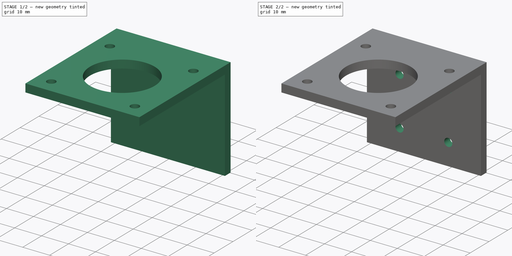
[diagram: build sequence overview — one tinted view per stage of 2, left to right]
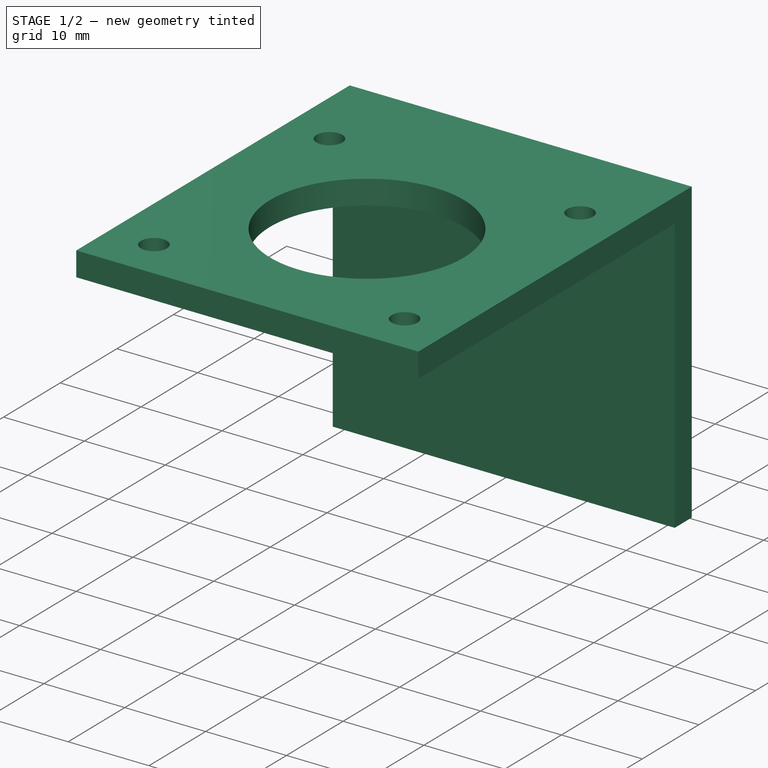
[diagram: stage 1 of 2 — iso view after this stage's code; geometry added in this stage tinted green]
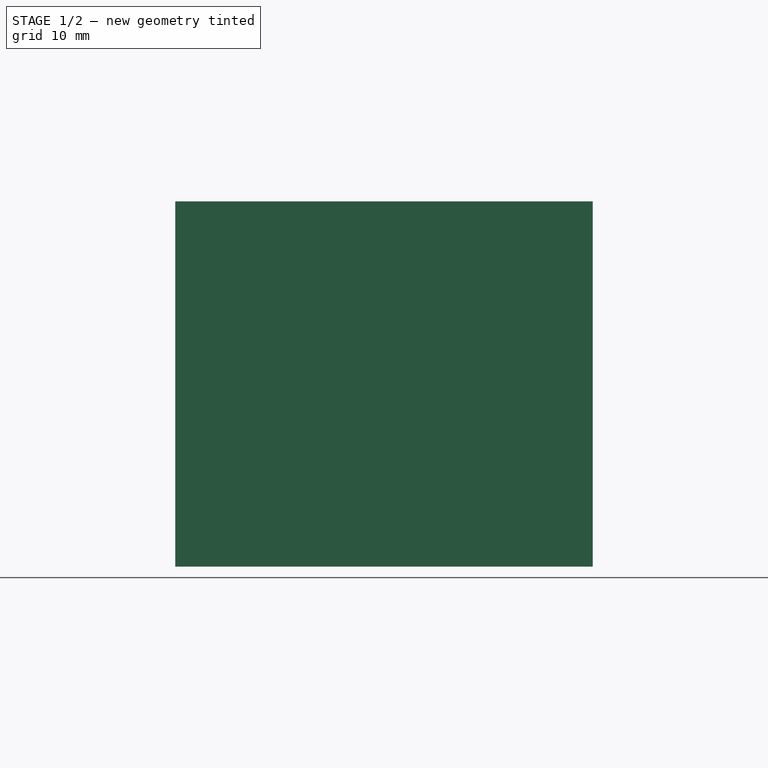
[diagram: stage 1 of 2 — front view after this stage's code; geometry added in this stage tinted green]
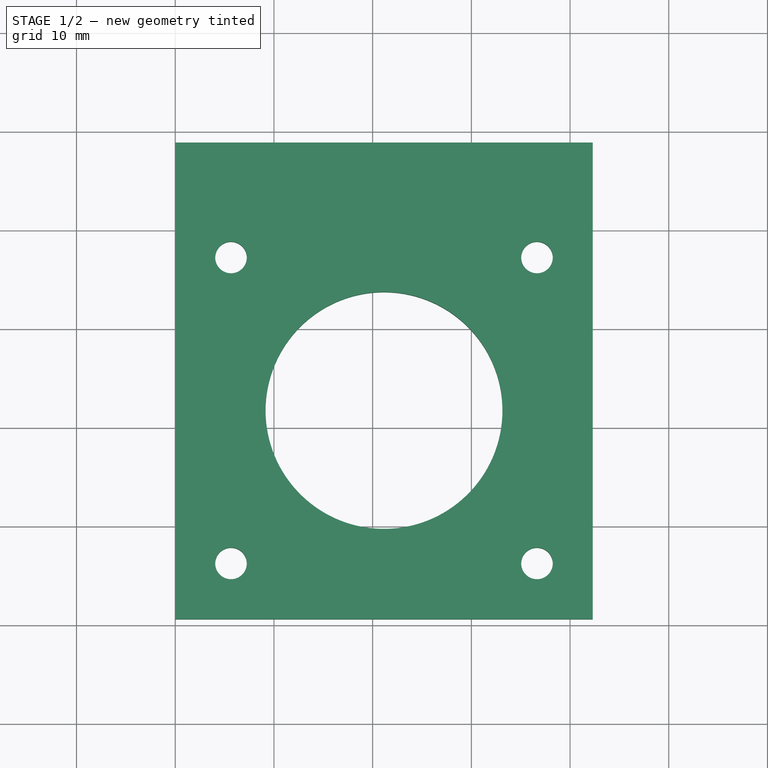
[diagram: stage 1 of 2 — top view after this stage's code; geometry added in this stage tinted green]
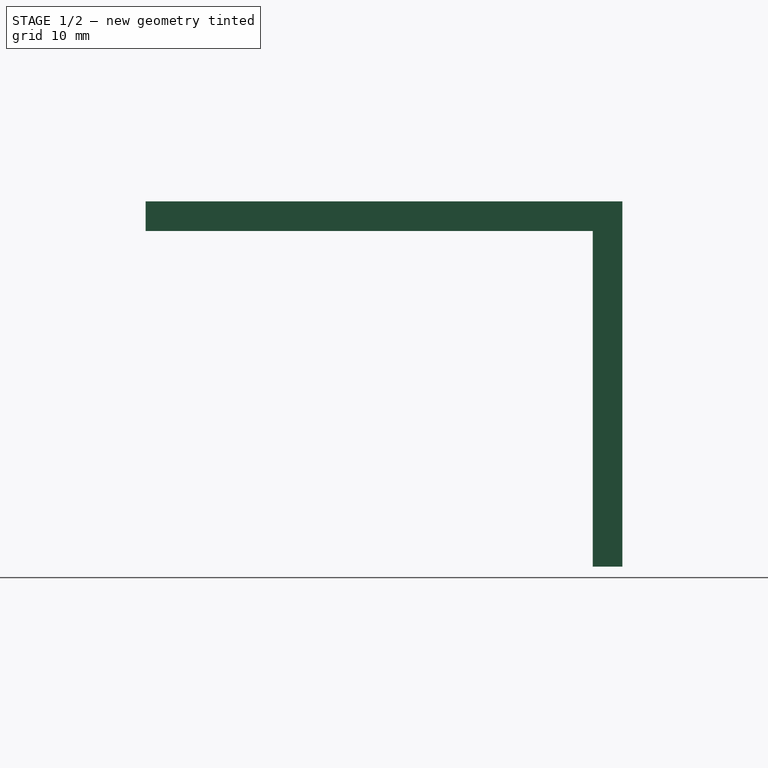
[diagram: stage 1 of 2 — right view after this stage's code; geometry added in this stage tinted green]
FCSTD DOCUMENT  (FreeCAD 0.16R6707 (Git))
Label: suport_moteur_34
License: All rights reserved
LicenseURL: http://en.wikipedia.org/wiki/All_rights_reserved
objects: Drawing::FeatureViewPart×4, Sketcher::SketchObject×3, PartDesign::Pad×2, PartDesign::Pocket×1, Drawing::FeaturePage×1
note: 9 computed .brp shape members not serialized (recipe doc carries the construction recipe); baked Part::Feature solids carry a one-line shape summary decoded from their .brp

FEATURE [Sketcher::SketchObject] Sketch
  sketch-geometry (14):
    g0: LineSegment StartX=0 StartY=0 StartZ=0 EndX=42.3 EndY=0 EndZ=0
    g1: LineSegment StartX=42.3 StartY=0 StartZ=0 EndX=42.3 EndY=48.3 EndZ=0
    g2: LineSegment StartX=42.3 StartY=48.3 StartZ=0 EndX=0 EndY=48.3 EndZ=0
    g3: LineSegment StartX=0 StartY=48.3 StartZ=0 EndX=0 EndY=0 EndZ=0
    g4: GeomPoint [constr] X=5.65 Y=5.65 Z=0
    g5: GeomPoint [constr] X=5.65 Y=36.65 Z=0
    g6: GeomPoint [constr] X=36.65 Y=36.65 Z=0
    g7: GeomPoint [constr] X=36.65 Y=5.65 Z=0
    g8: Circle CenterX=5.65 CenterY=36.65 CenterZ=0 NormalX=0 NormalY=0 NormalZ=1 Radius=1.6
    g9: Circle CenterX=36.65 CenterY=36.65 CenterZ=0 NormalX=0 NormalY=0 NormalZ=1 Radius=1.6
    g10: Circle CenterX=5.65 CenterY=5.65 CenterZ=0 NormalX=0 NormalY=0 NormalZ=1 Radius=1.6
    g11: Circle CenterX=36.65 CenterY=5.65 CenterZ=0 NormalX=0 NormalY=0 NormalZ=1 Radius=1.6
    g12: GeomPoint [constr] X=21.15 Y=21.15 Z=0
    g13: Circle CenterX=21.15 CenterY=21.15 CenterZ=0 NormalX=0 NormalY=0 NormalZ=1 Radius=12
  constraints (31):
    c: Coincident(g0,g1)
    c: Coincident(g1,g2)
    c: Coincident(g2,g3)
    c: Coincident(g3,g0)
    c: Horizontal(g0)
    c: Horizontal(g2)
    c: Vertical(g1)
    c: Vertical(g3)
    c: Coincident(g0,g-1)
    c: Distance(g0) = 42.3
    c: Distance(g3) = 48.3
    c: DistanceY(g5,g6) = 0
    c: DistanceX(g6,g7) = 0
    c: DistanceY(g7,g4) = 0
    c: DistanceX(g4,g5) = 0
    c: DistanceY(g4) = 5.65
    c: DistanceX(g6,g1) = 5.65
    c: Coincident(g8,g5)
    c: Coincident(g9,g6)
    c: Coincident(g10,g4)
    c: Coincident(g11,g7)
    c: Radius(g8) = 1.6
    c: Equal(g8,g9)
    c: Equal(g8,g10)
    c: Equal(g8,g11)
    c: DistanceY(g12) = 21.15
    c: DistanceX(g12) = 21.15
    c: Coincident(g13,g12)
    c: Radius(g13) = 12
    c: DistanceX(g4) = 5.65
    c: DistanceY(g7,g6) = 31
FEATURE [PartDesign::Pad] Pad
  Length = 3
  Length2 = 100
  Sketch = -> Sketch
  Type = 0
FEATURE [Sketcher::SketchObject] Sketch001
  Placement = pos=(0,0,0) rot=(1,0,0;3.14159rad)
  Support = -> Pad [Face10]
  sketch-geometry (4):
    g0: LineSegment StartX=0 StartY=-48.3 StartZ=0 EndX=42.3 EndY=-48.3 EndZ=0
    g1: LineSegment StartX=42.3 StartY=-48.3 StartZ=0 EndX=42.3 EndY=-45.3 EndZ=0
    g2: LineSegment StartX=42.3 StartY=-45.3 StartZ=0 EndX=0 EndY=-45.3 EndZ=0
    g3: LineSegment StartX=0 StartY=-45.3 StartZ=0 EndX=0 EndY=-48.3 EndZ=0
  constraints (12):
    c: Coincident(g0,g1)
    c: Coincident(g1,g2)
    c: Coincident(g2,g3)
    c: Coincident(g3,g0)
    c: Horizontal(g0)
    c: Horizontal(g2)
    c: Vertical(g1)
    c: Vertical(g3)
    c: PointOnObject(g0,g-2)
    c: DistanceY(g0) = -48.3
    c: Distance(g3) = 3
    c: Distance(g2) = 42.3
FEATURE [PartDesign::Pad] Pad001
  Length = 34
  Length2 = 100
  Sketch = -> Sketch001
  Type = 0
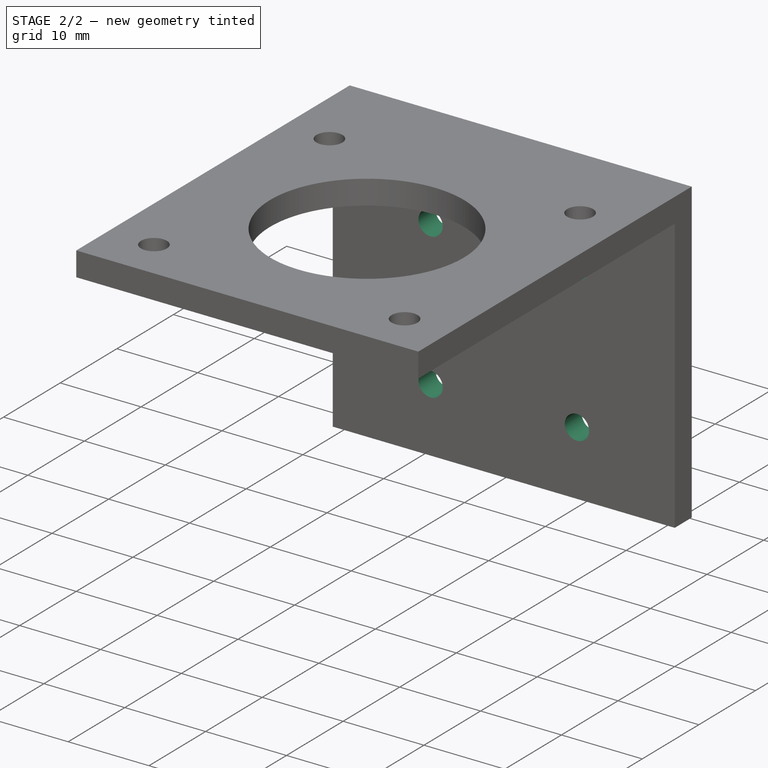
[diagram: stage 2 of 2 — iso view after this stage's code; geometry added in this stage tinted green]
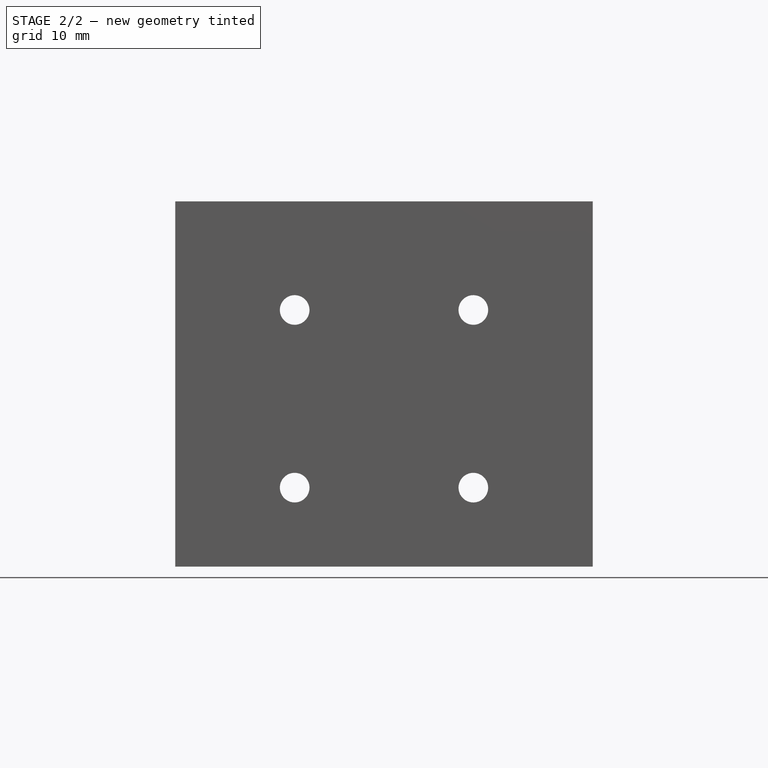
[diagram: stage 2 of 2 — front view after this stage's code; geometry added in this stage tinted green]
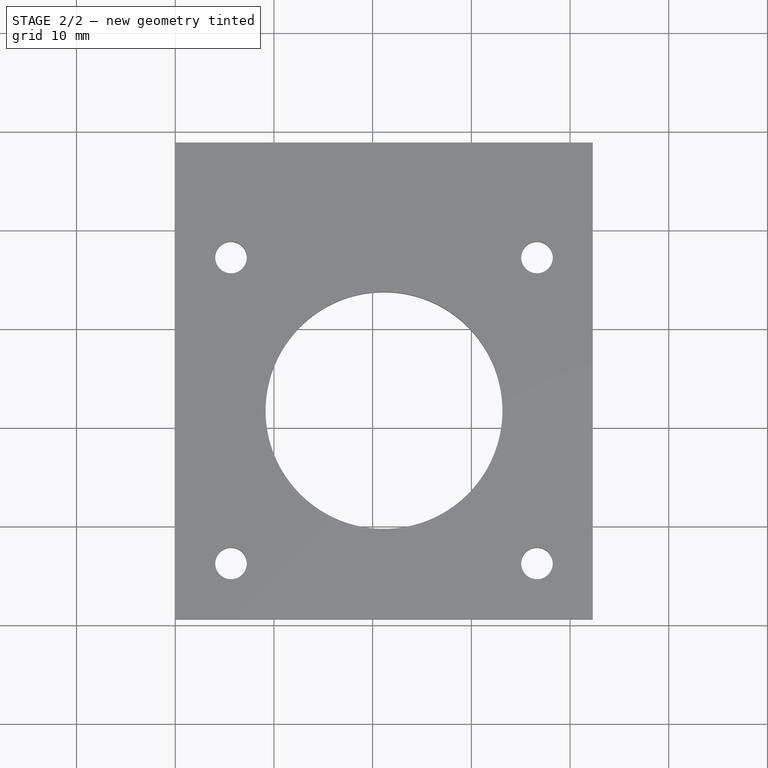
[diagram: stage 2 of 2 — top view after this stage's code; geometry added in this stage tinted green]
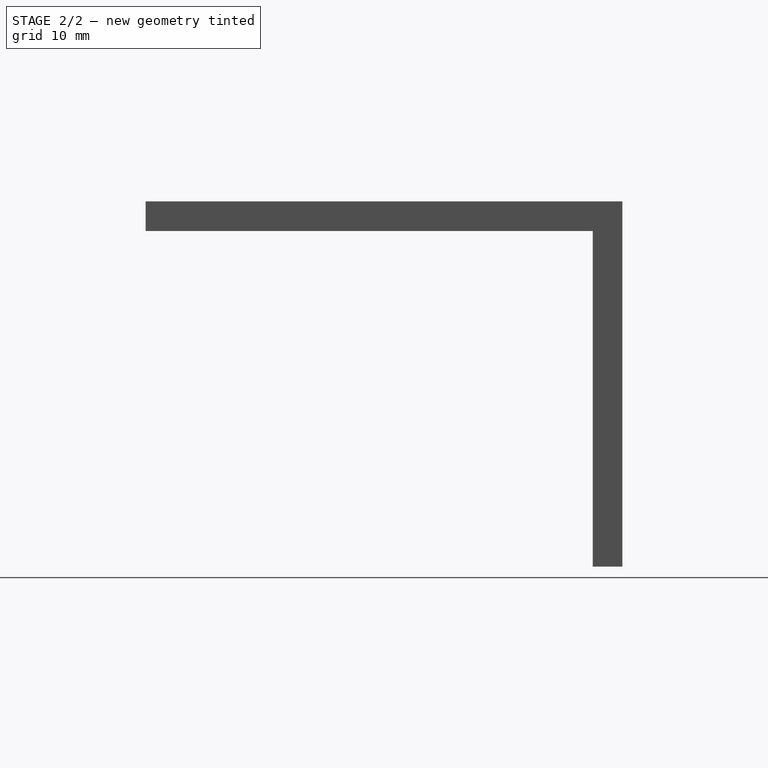
[diagram: stage 2 of 2 — right view after this stage's code; geometry added in this stage tinted green]
FEATURE [Sketcher::SketchObject] Sketch002
  Placement = pos=(0,48.3,0) rot=(0,0.707107,0.707107;3.14159rad)
  Support = -> Pad001 [Face15]
  sketch-geometry (4):
    g0: Circle CenterX=-30.2 CenterY=-8 CenterZ=0 NormalX=0 NormalY=0 NormalZ=1 Radius=1.5
    g1: Circle CenterX=-12.1 CenterY=-8 CenterZ=0 NormalX=0 NormalY=0 NormalZ=1 Radius=1.5
    g2: Circle CenterX=-30.2 CenterY=-26 CenterZ=0 NormalX=0 NormalY=0 NormalZ=1 Radius=1.5
    g3: Circle CenterX=-12.1 CenterY=-26 CenterZ=0 NormalX=0 NormalY=0 NormalZ=1 Radius=1.5
  constraints (12):
    c: DistanceY(g0) = -8
    c: DistanceY(g2,g0) = 18
    c: DistanceX(g0,g1) = 18.1
    c: DistanceX(g1,g-1) = 12.1
    c: DistanceY(g0,g1) = 0
    c: DistanceX(g2,g0) = 0
    c: DistanceY(g2,g3) = 0
    c: DistanceX(g1,g3) = 0
    c: Radius(g0) = 1.5
    c: Equal(g0,g1)
    c: Equal(g0,g2)
    c: Equal(g0,g3)
FEATURE [PartDesign::Pocket] Pocket
  Length = 5
  Sketch = -> Sketch002
  Type = 1
FEATURE [Drawing::FeatureViewPart] Ortho  label="Ortho_0_0"
  Direction = (1,0,0)
  HiddenWidth = 0.15
  LineWidth = 0.35
  Rotation = -90
  Scale = 2
  ShowHiddenLines = false
  ShowSmoothLines = false
  Source = -> Pocket
  Tolerance = 0.05
  ViewResult = <g id="Ortho_0_0"\n   transform="rotate(-90,82.9333,152.767) translate(82.9333,152.767) scale(2,2)"\n  >\n<g   stroke="rgb(0, 0, 0)"\n   stroke-width="0.175"\n   stroke-linecap="butt"\n   stroke-linejoin="miter"\n   fill="none"\n   transform="scale(1,-1)"\n  >\n<path id= "1" d=" M 0 0 L 3 0 " />\n<path id= "2" d=" M 0 0 L 0 -45.3 " />\n<path id= "3" d=" M 3 0 L 3 -48.3 " />\n<path id= "4" d=" M 0 -48.3 L 0 -45.3 " />\n<path id= "5" d=" M 0 -48.3 L 3 -48.3 " />\n<path id= "6" d=" M 0 -48.3 L -34 -48.3 " />\n<path id= "7" d=" M -34 -48.3 L -34 -45.3 " />\n<path id= "8" d=" M 0 -45.3 L -34 -45.3 " />\n<path d="M-24.5,-45.3 L-24.5376,-45.3  L-24.6485,-45.3  L-24.8273,-45.3  L-25.0648,-45.3  L-25.3492,-45.3  L-25.6662,-45.3  L-26,-45.3  L-26.3338,-45.3  L-26.6508,-45.3  L-26.9352,-45.3  L-27.1727,-45.3  L-27.3515,-45.3  L-27.4624,-45.3  L-27.5,-45.3 " /><path d="M-6.5,-45.3 L-6.53761,-45.3  L-6.64855,-45.3  L-6.82725,-45.3  L-7.06477,-45.3  L-7.34917,-45.3  L-7.66622,-45.3  L-8,-45.3  L-8.33378,-45.3  L-8.65083,-45.3  L-8.93523,-45.3  L-9.17275,-45.3  L-9.35145,-45.3  L-9.46239,-45.3  L-9.5,-45.3 " /></g>\n</g>
  Visible = true
  X = 82.9333
  Y = 152.767
FEATURE [Drawing::FeatureViewPart] Ortho001  label="Ortho_0_1"
  Direction = (0,0,1)
  HiddenWidth = 0.15
  LineWidth = 0.35
  Rotation = 90
  Scale = 2
  ShowHiddenLines = false
  ShowSmoothLines = false
  Source = -> Pocket
  Tolerance = 0.05
  ViewResult = <g id="Ortho_0_1"\n   transform="rotate(90,82.9333,42.7) translate(82.9333,42.7) scale(2,2)"\n  >\n<g   stroke="rgb(0, 0, 0)"\n   stroke-width="0.175"\n   stroke-linecap="butt"\n   stroke-linejoin="miter"\n   fill="none"\n   transform="scale(1,-1)"\n  >\n<path id= "1" d=" M 0 0 L 42.3 0 " />\n<path id= "2" d=" M 0 48.3 L 0 0 " />\n<path id= "3" d=" M 42.3 0 L 42.3 48.3 " />\n<path id= "4" d=" M 42.3 48.3 L 0 48.3 " />\n<circle cx ="21.15" cy ="21.15" r ="12" /><circle cx ="36.65" cy ="36.65" r ="1.6" /><circle cx ="36.65" cy ="5.65" r ="1.6" /><circle cx ="5.65" cy ="36.65" r ="1.6" /><circle cx ="5.65" cy ="5.65" r ="1.6" /></g>\n</g>
  Visible = true
  X = 82.9333
  Y = 42.7
FEATURE [Drawing::FeatureViewPart] Ortho002  label="Ortho_1_1"
  Direction = (-0.57735,-0.57735,0.57735)
  HiddenWidth = 0.15
  LineWidth = 0.35
  Rotation = -60
  Scale = 2
  ShowHiddenLines = false
  ShowSmoothLines = false
  Source = -> Pocket
  Tolerance = 0.05
  ViewResult = <blob: 2462 chars omitted>
  Visible = true
  X = 299.009
  Y = 96.6759
FEATURE [Drawing::FeatureViewPart] Ortho003  label="Ortho_1_0"
  Direction = (0,1,0)
  HiddenWidth = 0.15
  LineWidth = 0.35
  Rotation = -90
  Scale = 2
  ShowHiddenLines = false
  ShowSmoothLines = false
  Source = -> Pocket
  Tolerance = 0.05
  ViewResult = <g id="Ortho_1_0"\n   transform="rotate(-90,337.067,152.767) translate(337.067,152.767) scale(2,2)"\n  >\n<g   stroke="rgb(0, 0, 0)"\n   stroke-width="0.175"\n   stroke-linecap="butt"\n   stroke-linejoin="miter"\n   fill="none"\n   transform="scale(1,-1)"\n  >\n<path id= "1" d=" M 0 0 L 3 0 " />\n<path id= "2" d=" M 0 42.3 L 3 42.3 " />\n<path id= "3" d=" M 3 42.3 L 3 0 " />\n<path id= "4" d=" M 0 0 L 0 42.3 " />\n<path id= "5" d=" M 0 0 L -34 0 " />\n<path id= "6" d=" M 0 42.3 L -34 42.3 " />\n<path id= "7" d=" M -34 0 L -34 42.3 " />\n<circle cx ="-26" cy ="30.2" r ="1.5" /><circle cx ="-26" cy ="12.1" r ="1.5" /><circle cx ="-8" cy ="30.2" r ="1.5" /><circle cx ="-8" cy ="12.1" r ="1.5" /></g>\n</g>
  Visible = true
  X = 337.067
  Y = 152.767
FEATURE [Drawing::FeaturePage] Page
  EditableTexts = AUTHOR NAME | CREATION DATE | SUPERVISOR NAME | CHECK DATE | SCALE | WEIGHT | NUMBER | SHEET | TITLE | SUBTITLE
  Group = -> [Ortho,Ortho001,Ortho002,Ortho003]
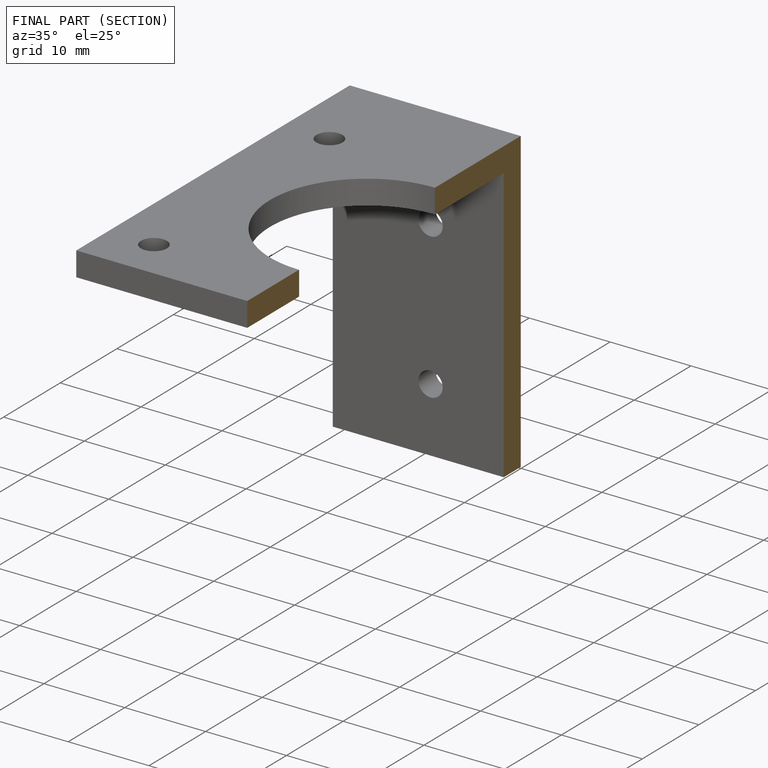
[diagram: finished part — half-section view (interior)]
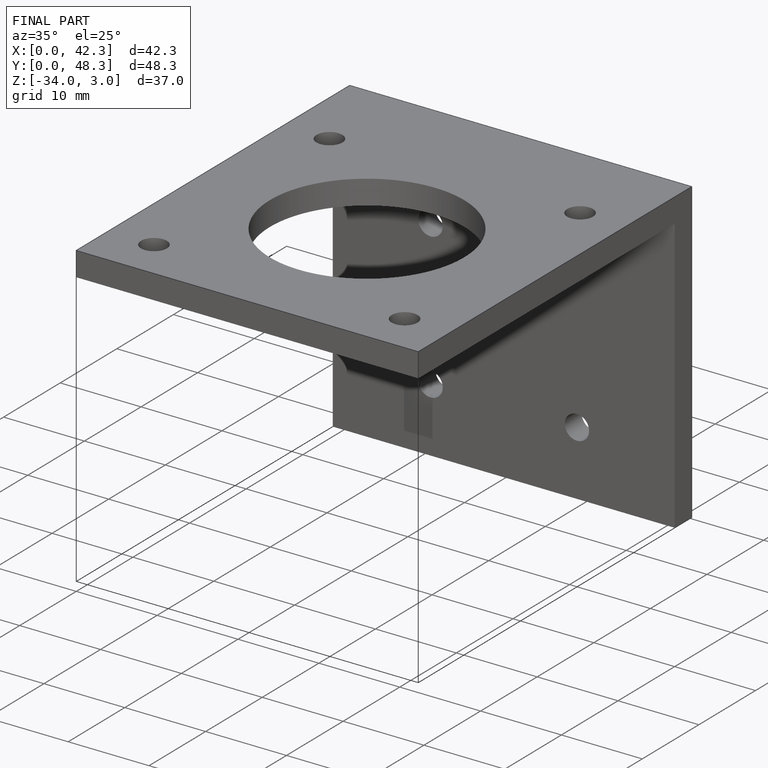
[diagram: finished part — iso view with bounding-box wireframe]
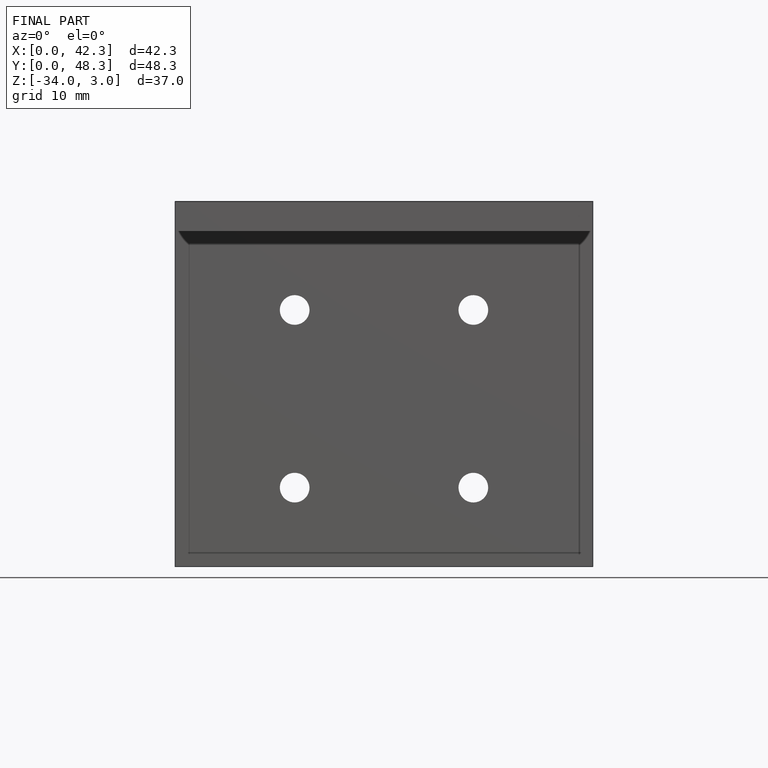
[diagram: finished part — front view with bounding-box wireframe]
